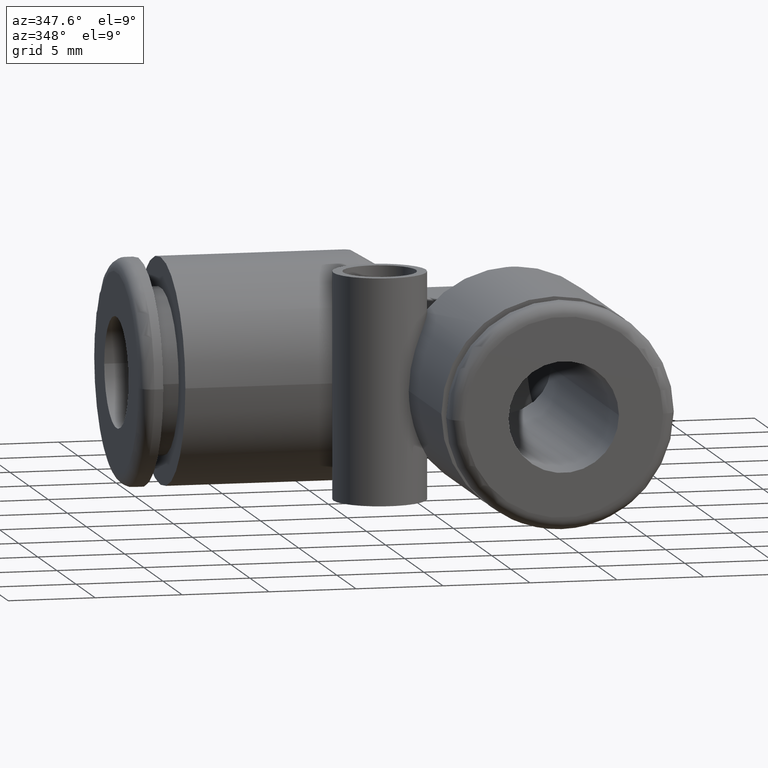
[diagram: clean part render]
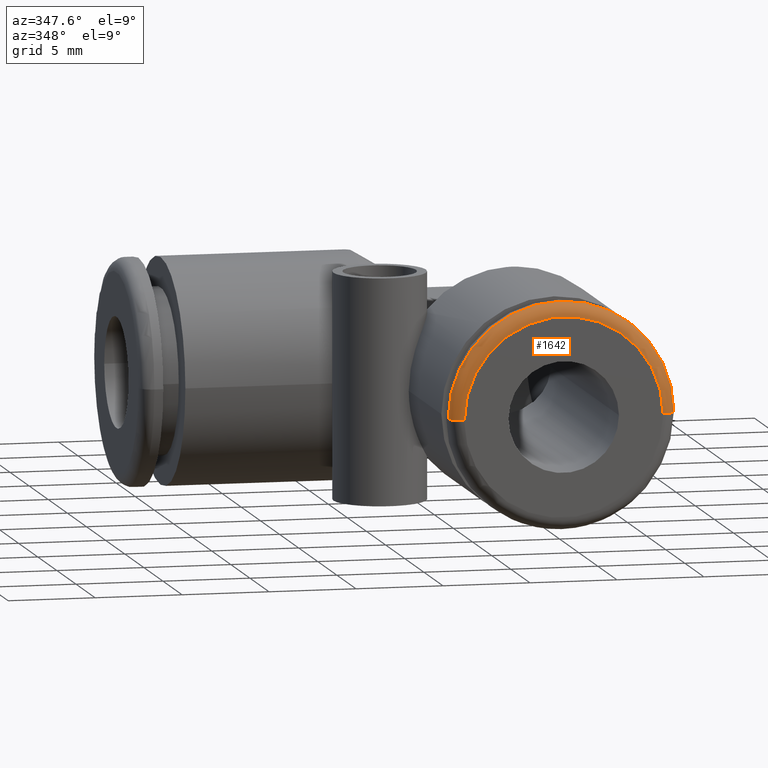
[diagram: same view with one face highlighted and labeled with its STEP entity id]
A machine part, auxiliary view. The second image highlights one B-rep face of the part: STEP entity #1642.
In plain terms, the highlighted toroidal blend (fillet) surface has major radius 5.715 mm and minor (blend) radius 0.762 mm.
Its self-contained STEP definition (entity closure, byte-faithful):
#697=CARTESIAN_POINT('',(2.25E-1,-8.E-1,4.084659693815E-12));
#698=DIRECTION('',(1.815404250538E-11,0.E0,-1.E0));
#699=DIRECTION('',(1.E0,0.E0,1.815404250538E-11));
#700=AXIS2_PLACEMENT_3D('',#697,#698,#699);
#702=CARTESIAN_POINT('',(0.E0,-8.E-1,0.E0));
#703=DIRECTION('',(0.E0,1.E0,0.E0));
#704=DIRECTION('',(-1.E0,0.E0,0.E0));
#705=AXIS2_PLACEMENT_3D('',#702,#703,#704);
#707=CARTESIAN_POINT('',(0.E0,-8.3E-1,0.E0));
#708=DIRECTION('',(0.E0,1.E0,0.E0));
#709=DIRECTION('',(-1.E0,0.E0,0.E0));
#710=AXIS2_PLACEMENT_3D('',#707,#708,#709);
#712=CARTESIAN_POINT('',(-2.25E-1,-8.E-1,-4.084670535837E-12));
#713=DIRECTION('',(-1.815409107764E-11,0.E0,1.E0));
#714=DIRECTION('',(-1.E0,0.E0,-1.815409107764E-11));
#715=AXIS2_PLACEMENT_3D('',#712,#713,#714);
#968=CARTESIAN_POINT('',(2.55E-1,-8.E-1,0.E0));
#969=CARTESIAN_POINT('',(-2.55E-1,-8.E-1,0.E0));
#970=VERTEX_POINT('',#968);
#971=VERTEX_POINT('',#969);
#972=CARTESIAN_POINT('',(2.249999991220E-1,-8.3E-1,0.E0));
#973=CARTESIAN_POINT('',(-2.249999991220E-1,-8.3E-1,0.E0));
#974=VERTEX_POINT('',#972);
#975=VERTEX_POINT('',#973);
#1630=CARTESIAN_POINT('',(0.E0,-8.E-1,0.E0));
#1631=DIRECTION('',(0.E0,-1.E0,0.E0));
#1632=DIRECTION('',(-9.999560484426E-1,0.E0,-9.375563081796E-3));
#1633=AXIS2_PLACEMENT_3D('',#1630,#1631,#1632);
#1634=TOROIDAL_SURFACE('',#1633,2.25E-1,3.E-2);
#1636=ORIENTED_EDGE('',*,*,#1635,.T.);
#1637=ORIENTED_EDGE('',*,*,#1625,.T.);
#1638=ORIENTED_EDGE('',*,*,#1011,.F.);
#1639=ORIENTED_EDGE('',*,*,#1622,.F.);
#1640=EDGE_LOOP('',(#1636,#1637,#1638,#1639));
#1641=FACE_OUTER_BOUND('',#1640,.F.);
#1642=ADVANCED_FACE('',(#1641),#1634,.T.);
#701=CIRCLE('',#700,3.E-2);
#706=CIRCLE('',#705,2.55E-1);
#711=CIRCLE('',#710,2.249999991220E-1);
#716=CIRCLE('',#715,3.E-2);
#1011=EDGE_CURVE('',#975,#974,#711,.T.);
#1622=EDGE_CURVE('',#971,#975,#716,.T.);
#1625=EDGE_CURVE('',#970,#974,#701,.T.);
#1635=EDGE_CURVE('',#971,#970,#706,.T.);